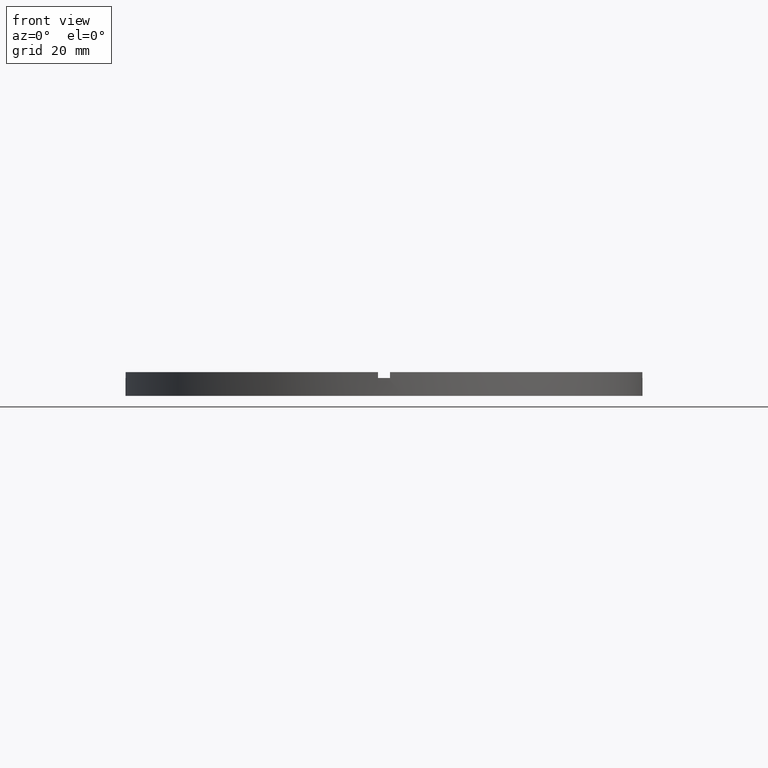
[diagram: clean part render]
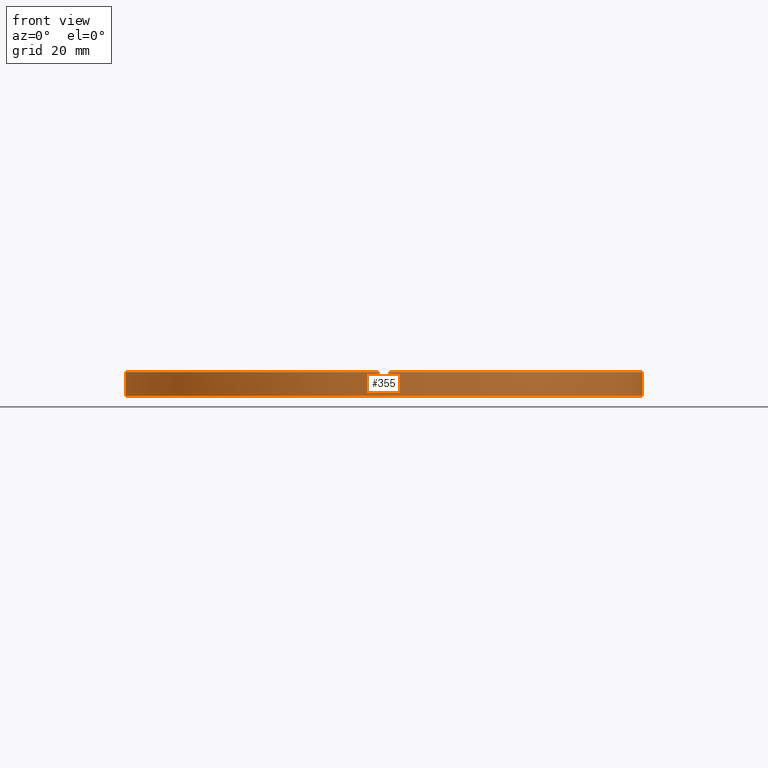
[diagram: same view with one face highlighted and labeled with its STEP entity id]
A machine part, front view. The second image highlights one B-rep face of the part: STEP entity #355.
In plain terms, the highlighted cylindrical surface (partial cylindrical patch) has radius 43.5 mm, axis along (-0, -0, -1).
Its self-contained STEP definition (entity closure, byte-faithful):
#4 = AXIS2_PLACEMENT_3D ( 'NONE', #768, #617, #515 ) ;
#17 = DIRECTION ( 'NONE',  ( 1.000000000000000000, 0.000000000000000000, 0.000000000000000000 ) ) ;
#19 = VECTOR ( 'NONE', #681, 1000.000000000000000 ) ;
#30 = VERTEX_POINT ( 'NONE', #120 ) ;
#39 = LINE ( 'NONE', #609, #563 ) ;
#42 = LINE ( 'NONE', #525, #305 ) ;
#59 = AXIS2_PLACEMENT_3D ( 'NONE', #291, #361, #306 ) ;
#70 = FACE_OUTER_BOUND ( 'NONE', #416, .T. ) ;
#75 = VERTEX_POINT ( 'NONE', #597 ) ;
#80 = CARTESIAN_POINT ( 'NONE',  ( 0.000000000000000000, 0.000000000000000000, 4.000000000000000000 ) ) ;
#86 = ORIENTED_EDGE ( 'NONE', *, *, #436, .F. ) ;
#104 = CARTESIAN_POINT ( 'NONE',  ( -1.000000000000158318, -43.48850422812905947, 4.000000000000000000 ) ) ;
#113 = CARTESIAN_POINT ( 'NONE',  ( 0.000000000000000000, 0.000000000000000000, 0.000000000000000000 ) ) ;
#119 = CARTESIAN_POINT ( 'NONE',  ( -43.48850422812906658, -1.000000000000029532, 3.000000000000000000 ) ) ;
#120 = CARTESIAN_POINT ( 'NONE',  ( 43.48850422812905947, -1.000000000000156319, 4.000000000000000000 ) ) ;
#130 = EDGE_CURVE ( 'NONE', #75, #470, #552, .T. ) ;
#142 = DIRECTION ( 'NONE',  ( 0.000000000000000000, 0.000000000000000000, 1.000000000000000000 ) ) ;
#146 = DIRECTION ( 'NONE',  ( 1.000000000000000000, 0.000000000000000000, 0.000000000000000000 ) ) ;
#151 = DIRECTION ( 'NONE',  ( 0.000000000000000000, 0.000000000000000000, 1.000000000000000000 ) ) ;
#162 = DIRECTION ( 'NONE',  ( -0.000000000000000000, -0.000000000000000000, -1.000000000000000000 ) ) ;
#164 = VECTOR ( 'NONE', #142, 1000.000000000000000 ) ;
#167 = CARTESIAN_POINT ( 'NONE',  ( -1.000000000000158318, -43.48850422812905947, 3.000000000000000000 ) ) ;
#173 = VERTEX_POINT ( 'NONE', #406 ) ;
#174 = LINE ( 'NONE', #104, #164 ) ;
#189 = ORIENTED_EDGE ( 'NONE', *, *, #663, .T. ) ;
#204 = CIRCLE ( 'NONE', #642, 43.50000000000000000 ) ;
#217 = CIRCLE ( 'NONE', #551, 43.50000000000000000 ) ;
#221 = ORIENTED_EDGE ( 'NONE', *, *, #735, .F. ) ;
#226 = CARTESIAN_POINT ( 'NONE',  ( 0.9999999999998416822, -43.48850422812906658, 4.000000000000000000 ) ) ;
#234 = EDGE_CURVE ( 'NONE', #338, #30, #567, .T. ) ;
#238 = CARTESIAN_POINT ( 'NONE',  ( -43.50000000000000000, 0.000000000000000000, 4.000000000000000000 ) ) ;
#251 = VERTEX_POINT ( 'NONE', #664 ) ;
#273 = ORIENTED_EDGE ( 'NONE', *, *, #398, .F. ) ;
#276 = ORIENTED_EDGE ( 'NONE', *, *, #404, .T. ) ;
#283 = LINE ( 'NONE', #615, #19 ) ;
#288 = EDGE_CURVE ( 'NONE', #327, #470, #579, .T. ) ;
#290 = AXIS2_PLACEMENT_3D ( 'NONE', #113, #743, #17 ) ;
#291 = CARTESIAN_POINT ( 'NONE',  ( 0.000000000000000000, 0.000000000000000000, 4.000000000000000000 ) ) ;
#305 = VECTOR ( 'NONE', #162, 1000.000000000000000 ) ;
#306 = DIRECTION ( 'NONE',  ( -1.000000000000000000, 0.000000000000000000, 0.000000000000000000 ) ) ;
#315 = VECTOR ( 'NONE', #402, 1000.000000000000000 ) ;
#327 = VERTEX_POINT ( 'NONE', #484 ) ;
#329 = CYLINDRICAL_SURFACE ( 'NONE', #59, 43.50000000000000000 ) ;
#338 = VERTEX_POINT ( 'NONE', #226 ) ;
#342 = VERTEX_POINT ( 'NONE', #167 ) ;
#355 = ADVANCED_FACE ( 'NONE', ( #70 ), #329, .T. ) ;
#361 = DIRECTION ( 'NONE',  ( -0.000000000000000000, -0.000000000000000000, -1.000000000000000000 ) ) ;
#371 = CARTESIAN_POINT ( 'NONE',  ( 0.000000000000000000, 0.000000000000000000, 4.000000000000000000 ) ) ;
#378 = EDGE_CURVE ( 'NONE', #613, #30, #39, .T. ) ;
#398 = EDGE_CURVE ( 'NONE', #425, #572, #42, .T. ) ;
#402 = DIRECTION ( 'NONE',  ( -0.000000000000000000, -0.000000000000000000, -1.000000000000000000 ) ) ;
#403 = CARTESIAN_POINT ( 'NONE',  ( 43.48850422812905947, -1.000000000000156319, 3.000000000000000000 ) ) ;
#404 = EDGE_CURVE ( 'NONE', #75, #251, #559, .T. ) ;
#406 = CARTESIAN_POINT ( 'NONE',  ( 0.9999999999998416822, -43.48850422812906658, 3.000000000000000000 ) ) ;
#416 = EDGE_LOOP ( 'NONE', ( #273, #221, #763, #477, #712, #467, #434, #86, #531, #438, #276, #189 ) ) ;
#418 = CARTESIAN_POINT ( 'NONE',  ( -43.48850422812906658, -1.000000000000029532, 4.000000000000000000 ) ) ;
#423 = CIRCLE ( 'NONE', #290, 43.50000000000000000 ) ;
#425 = VERTEX_POINT ( 'NONE', #601 ) ;
#434 = ORIENTED_EDGE ( 'NONE', *, *, #665, .T. ) ;
#436 = EDGE_CURVE ( 'NONE', #327, #523, #217, .T. ) ;
#438 = ORIENTED_EDGE ( 'NONE', *, *, #130, .F. ) ;
#440 = DIRECTION ( 'NONE',  ( 1.000000000000000000, 0.000000000000000000, 0.000000000000000000 ) ) ;
#461 = DIRECTION ( 'NONE',  ( -0.000000000000000000, 0.000000000000000000, 1.000000000000000000 ) ) ;
#467 = ORIENTED_EDGE ( 'NONE', *, *, #570, .F. ) ;
#469 = CARTESIAN_POINT ( 'NONE',  ( 43.50000000000000000, 5.327213576290986044E-15, 0.000000000000000000 ) ) ;
#470 = VERTEX_POINT ( 'NONE', #119 ) ;
#472 = DIRECTION ( 'NONE',  ( 0.000000000000000000, 0.000000000000000000, 1.000000000000000000 ) ) ;
#477 = ORIENTED_EDGE ( 'NONE', *, *, #234, .F. ) ;
#484 = CARTESIAN_POINT ( 'NONE',  ( -43.48850422812906658, -1.000000000000029532, 4.000000000000000000 ) ) ;
#491 = EDGE_CURVE ( 'NONE', #338, #173, #283, .T. ) ;
#495 = CARTESIAN_POINT ( 'NONE',  ( 0.000000000000000000, 0.000000000000000000, 3.000000000000000000 ) ) ;
#502 = AXIS2_PLACEMENT_3D ( 'NONE', #647, #461, #146 ) ;
#515 = DIRECTION ( 'NONE',  ( 1.000000000000000000, 0.000000000000000000, 0.000000000000000000 ) ) ;
#523 = VERTEX_POINT ( 'NONE', #758 ) ;
#525 = CARTESIAN_POINT ( 'NONE',  ( 43.50000000000000000, 5.327213576290986044E-15, 4.000000000000000000 ) ) ;
#531 = ORIENTED_EDGE ( 'NONE', *, *, #288, .T. ) ;
#551 = AXIS2_PLACEMENT_3D ( 'NONE', #80, #472, #772 ) ;
#552 = CIRCLE ( 'NONE', #4, 43.50000000000000000 ) ;
#559 = LINE ( 'NONE', #238, #562 ) ;
#561 = CIRCLE ( 'NONE', #502, 43.50000000000000000 ) ;
#562 = VECTOR ( 'NONE', #656, 1000.000000000000000 ) ;
#563 = VECTOR ( 'NONE', #151, 1000.000000000000000 ) ;
#567 = CIRCLE ( 'NONE', #727, 43.50000000000000000 ) ;
#570 = EDGE_CURVE ( 'NONE', #342, #173, #561, .T. ) ;
#572 = VERTEX_POINT ( 'NONE', #469 ) ;
#579 = LINE ( 'NONE', #418, #315 ) ;
#584 = DIRECTION ( 'NONE',  ( 0.000000000000000000, 0.000000000000000000, 1.000000000000000000 ) ) ;
#597 = CARTESIAN_POINT ( 'NONE',  ( -43.50000000000000000, 0.000000000000000000, 3.000000000000000000 ) ) ;
#601 = CARTESIAN_POINT ( 'NONE',  ( 43.50000000000000000, 5.327213576290986044E-15, 3.000000000000000000 ) ) ;
#609 = CARTESIAN_POINT ( 'NONE',  ( 43.48850422812905947, -1.000000000000156319, 4.000000000000000000 ) ) ;
#613 = VERTEX_POINT ( 'NONE', #403 ) ;
#615 = CARTESIAN_POINT ( 'NONE',  ( 0.9999999999998416822, -43.48850422812906658, 4.000000000000000000 ) ) ;
#617 = DIRECTION ( 'NONE',  ( 0.000000000000000000, 0.000000000000000000, 1.000000000000000000 ) ) ;
#642 = AXIS2_PLACEMENT_3D ( 'NONE', #495, #584, #440 ) ;
#647 = CARTESIAN_POINT ( 'NONE',  ( 0.000000000000000000, 0.000000000000000000, 3.000000000000000000 ) ) ;
#655 = DIRECTION ( 'NONE',  ( 0.000000000000000000, 0.000000000000000000, 1.000000000000000000 ) ) ;
#656 = DIRECTION ( 'NONE',  ( -0.000000000000000000, -0.000000000000000000, -1.000000000000000000 ) ) ;
#663 = EDGE_CURVE ( 'NONE', #251, #572, #423, .T. ) ;
#664 = CARTESIAN_POINT ( 'NONE',  ( -43.50000000000000000, 0.000000000000000000, 0.000000000000000000 ) ) ;
#665 = EDGE_CURVE ( 'NONE', #342, #523, #174, .T. ) ;
#681 = DIRECTION ( 'NONE',  ( -0.000000000000000000, -0.000000000000000000, -1.000000000000000000 ) ) ;
#711 = DIRECTION ( 'NONE',  ( 1.000000000000000000, 0.000000000000000000, 0.000000000000000000 ) ) ;
#712 = ORIENTED_EDGE ( 'NONE', *, *, #491, .T. ) ;
#727 = AXIS2_PLACEMENT_3D ( 'NONE', #371, #655, #711 ) ;
#735 = EDGE_CURVE ( 'NONE', #613, #425, #204, .T. ) ;
#743 = DIRECTION ( 'NONE',  ( 0.000000000000000000, 0.000000000000000000, 1.000000000000000000 ) ) ;
#758 = CARTESIAN_POINT ( 'NONE',  ( -1.000000000000158318, -43.48850422812905947, 4.000000000000000000 ) ) ;
#763 = ORIENTED_EDGE ( 'NONE', *, *, #378, .T. ) ;
#768 = CARTESIAN_POINT ( 'NONE',  ( 0.000000000000000000, 0.000000000000000000, 3.000000000000000000 ) ) ;
#772 = DIRECTION ( 'NONE',  ( 1.000000000000000000, 0.000000000000000000, 0.000000000000000000 ) ) ;